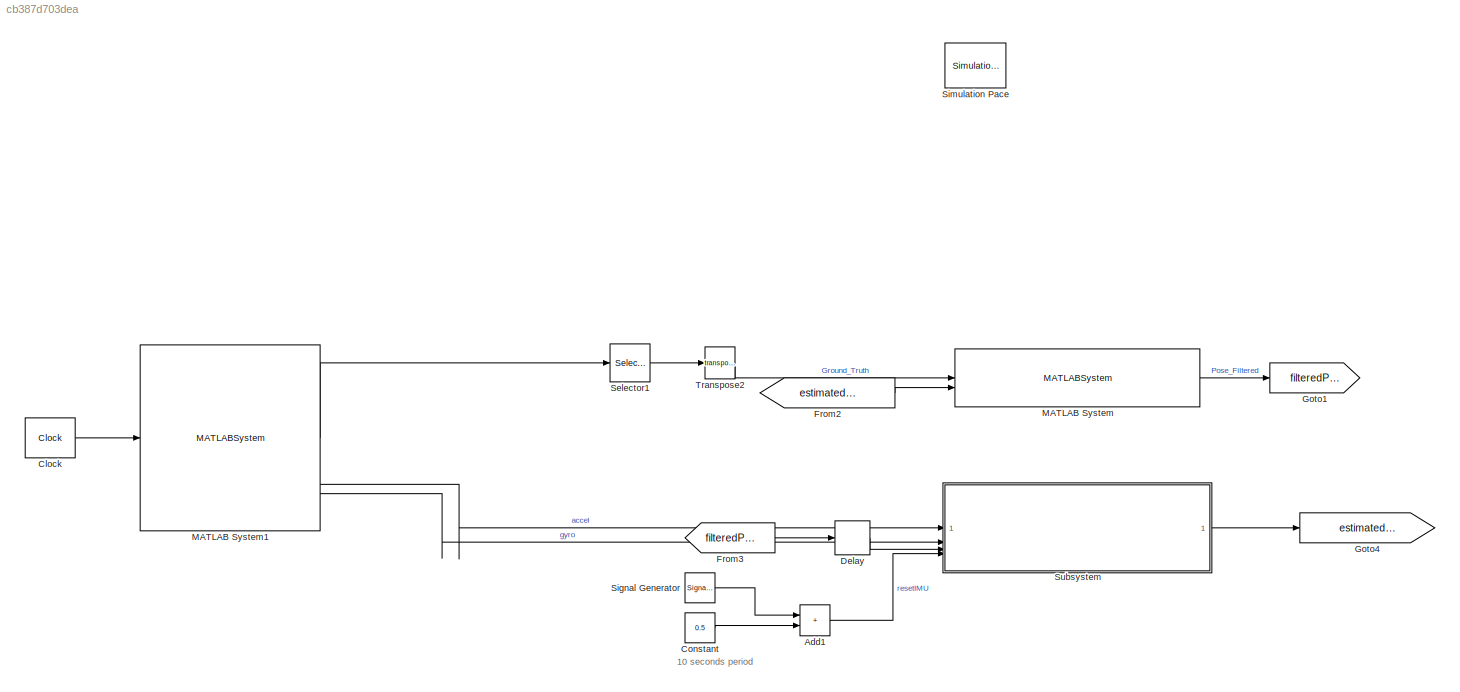
MODEL slx_cb387d703dea
KIND model
CONFIG AbsTol = auto
CONFIG EnableMultiTasking = off
CONFIG FixedStep = auto
CONFIG MaxStep = auto
CONFIG MinStep = auto
CONFIG RelTol = 1e-3
CONFIG SampleTimeConstraint = Unconstrained
CONFIG SolverName = VariableStepAuto
CONFIG StartTime = 0.0
CONFIG StopTime = inf
BLOCK [Sum] Add1
  IconShape = rectangular
BLOCK [Clock] Clock
  DisplayTime = on
BLOCK [Constant] Constant
  Value = 0.5
BLOCK [Delay] Delay
  DelayLength = 1
  InitialCondition = [0 0 0]
  InputPortMap = u0
BLOCK [From] From2
  GotoTag = estimatedIMUPose
BLOCK [From] From3
  GotoTag = filteredPose
BLOCK [Goto] Goto1
  GotoTag = filteredPose
BLOCK [Goto] Goto4
  GotoTag = estimatedIMUPose
BLOCK [MATLABSystem] MATLAB System
  MaskDisplay = disp('KalmanFusionSystem');\nport_label('input',1,'pos_slam');\nport_label('input',2,'pos_imu');\nport_label('output',1,'pos_filtered');
  MaskType = KalmanFusionSystem
  Q = 0.01 * eye( 6 )
  R = diag( [ 0.3, 0.3, 0.3, 1, 1, 1 ] )
  SimulateUsing = Interpreted execution
  System = KalmanFusionSystem
  dt = 0.1
  noise_std = 0.5
BLOCK [MATLABSystem] MATLAB System1
  MaskDisplay = disp('GTruthPlayerSystem');\nport_label('input',1,'t');\nport_label('output',1,'pose');\nport_label('output',2,'timestamp');\nport_label('output',3,'accel');\nport_label('output',4,'gyro');\nport_label('output',5,'poseIdx');\nport_label('output',6,'maxIdx');
  MaskType = GTruthPlayerSystem
  SimulateUsing = Interpreted execution
  System = GTruthPlayerSystem
  groundTruthFile = <userpath>\Documents\SEN5\CollaborativeSLAM\Scenarios\8\uavData.mat
BLOCK [Selector] Selector1
  IndexOptions = Index vector (dialog)
  Indices = [1 2 3]
  InputPortWidth = 7
  OutputSizes = 1
BLOCK [SignalGenerator] Signal Generator
  Amplitude = 0.5
  Frequency = 10
  WaveForm = square
BLOCK [Reference] Simulation Pace  REF=aerolibanimutils/Simulation Pace
  AttributesFormatString = %<SleepMode>\n%<SimulationPace> sec/sec
  SourceBlock = aerolibanimutils/Simulation Pace
  SourceType = Simulation Pace
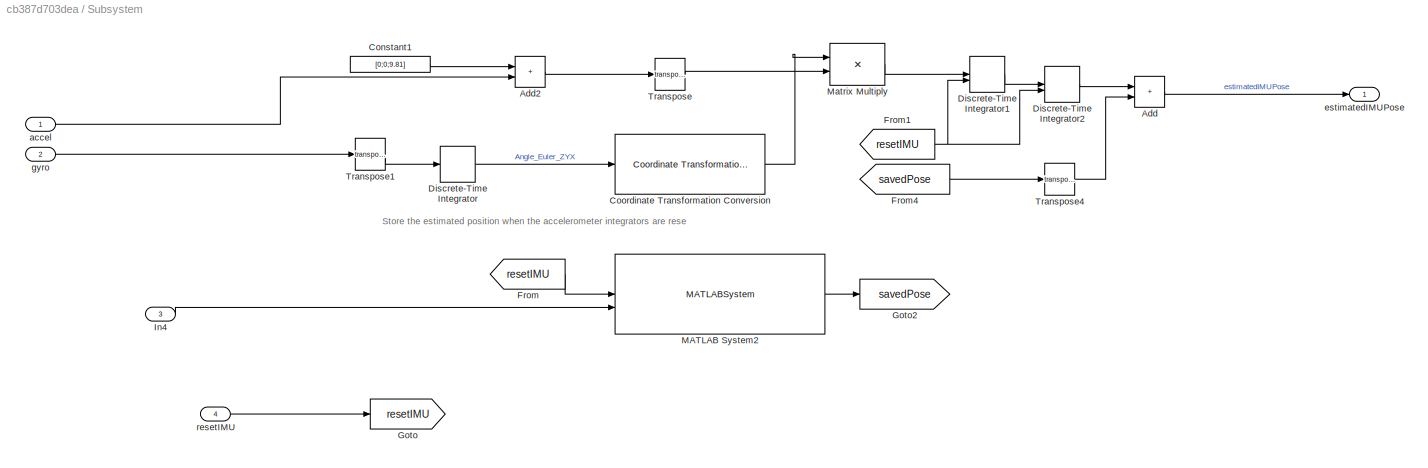
BLOCK [SubSystem] Subsystem
BLOCK [Sum] Subsystem/Add
  IconShape = rectangular
BLOCK [Sum] Subsystem/Add2
  IconShape = rectangular
BLOCK [Constant] Subsystem/Constant1
  Value = [0;0;9.81]
BLOCK [Reference] Subsystem/Coordinate Transformation Conversion  REF=robotcorelib/Coordinate Transformation Conversion
  LibrarySourceBlock = navlib/Utilities/Coordinate Transformation Conversion
  SourceBlock = robotcorelib/Coordinate Transformation Conversion
  SourceType = robotics.slcore.internal.block.CoordinateTransformationConversion
BLOCK [DiscreteIntegrator] Subsystem/Discrete-Time Integrator
  ExternalReset = rising
  ICPrevOutput = DiscIntNeverNeededParam
  ICPrevScaledInput = DiscIntNeverNeededParam
  InitialConditionSetting = Auto
  SampleTime = 0.01
BLOCK [DiscreteIntegrator] Subsystem/Discrete-Time Integrator1
  ExternalReset = rising
  ICPrevOutput = DiscIntNeverNeededParam
  ICPrevScaledInput = DiscIntNeverNeededParam
  InitialConditionSetting = Auto
  SampleTime = 1e-3
BLOCK [DiscreteIntegrator] Subsystem/Discrete-Time Integrator2
  ExternalReset = rising
  ICPrevOutput = DiscIntNeverNeededParam
  ICPrevScaledInput = DiscIntNeverNeededParam
  InitialConditionSetting = Auto
  SampleTime = 1e-3
BLOCK [From] Subsystem/From
  GotoTag = resetIMU
BLOCK [From] Subsystem/From1
  GotoTag = resetIMU
BLOCK [From] Subsystem/From4
  GotoTag = savedPose
BLOCK [Goto] Subsystem/Goto
  GotoTag = resetIMU
BLOCK [Goto] Subsystem/Goto2
  GotoTag = savedPose
BLOCK [Inport] Subsystem/In4
  Port = 3
BLOCK [MATLABSystem] Subsystem/MATLAB System2
  MaskDisplay = disp('IMUPoseMemory');\nport_label('input',1,'resetImu');\nport_label('input',2,'filteredPose');\nport_label('output',1,'savedPose');
  MaskType = IMUPoseMemory
  SimulateUsing = Interpreted execution
  System = IMUPoseMemory
BLOCK [Product] Subsystem/Matrix Multiply
  Multiplication = Matrix(*)
BLOCK [Math] Subsystem/Transpose
  Operator = transpose
BLOCK [Math] Subsystem/Transpose1
  Operator = transpose
BLOCK [Math] Subsystem/Transpose4
  Operator = transpose
BLOCK [Inport] Subsystem/accel
BLOCK [Outport] Subsystem/estimatedIMUPose
BLOCK [Inport] Subsystem/gyro
  Port = 2
BLOCK [Inport] Subsystem/resetIMU
  Port = 4
BLOCK [Math] Transpose2
  Operator = transpose
ANNOTATION (root): 10 seconds period
ANNOTATION Subsystem: Store the estimated position when the accelerometer integrators are rese
LINE Add1:1 -> Subsystem:4
LINE Clock:1 -> MATLAB System1:1
LINE Constant:1 -> Add1:2
LINE Delay:1 -> Subsystem:3
LINE From2:1 -> MATLAB System:2
LINE From3:1 -> Delay:1
LINE MATLAB System1:1 -> Selector1:1
LINE MATLAB System1:3 -> Subsystem:1
LINE MATLAB System1:4 -> Subsystem:2
LINE MATLAB System:1 -> Goto1:1
LINE Selector1:1 -> Transpose2:1
LINE Signal Generator:1 -> Add1:1
LINE Subsystem/Add2:1 -> Subsystem/Transpose:1
LINE Subsystem/Add:1 -> Subsystem/estimatedIMUPose:1
LINE Subsystem/Constant1:1 -> Subsystem/Add2:1
LINE Subsystem/Coordinate Transformation Conversion:1 -> Subsystem/Matrix Multiply:1
LINE Subsystem/Discrete-Time Integrator1:1 -> Subsystem/Discrete-Time Integrator2:1
LINE Subsystem/Discrete-Time Integrator2:1 -> Subsystem/Add:1
LINE Subsystem/Discrete-Time Integrator:1 -> Subsystem/Coordinate Transformation Conversion:1
NET Subsystem/From1:1 -> Subsystem/Discrete-Time Integrator1:2, Subsystem/Discrete-Time Integrator2:2
LINE Subsystem/From4:1 -> Subsystem/Transpose4:1
LINE Subsystem/From:1 -> Subsystem/MATLAB System2:1
LINE Subsystem/In4:1 -> Subsystem/MATLAB System2:2
LINE Subsystem/MATLAB System2:1 -> Subsystem/Goto2:1
LINE Subsystem/Matrix Multiply:1 -> Subsystem/Discrete-Time Integrator1:1
LINE Subsystem/Transpose1:1 -> Subsystem/Discrete-Time Integrator:1
LINE Subsystem/Transpose4:1 -> Subsystem/Add:2
LINE Subsystem/Transpose:1 -> Subsystem/Matrix Multiply:2
LINE Subsystem/accel:1 -> Subsystem/Add2:2
LINE Subsystem/gyro:1 -> Subsystem/Transpose1:1
LINE Subsystem/resetIMU:1 -> Subsystem/Goto:1
LINE Subsystem:1 -> Goto4:1
LINE Transpose2:1 -> MATLAB System:1
note: NET lines group one-source signal fan-out (src -> all destinations, sorted); 1:1 wires keep LINE
